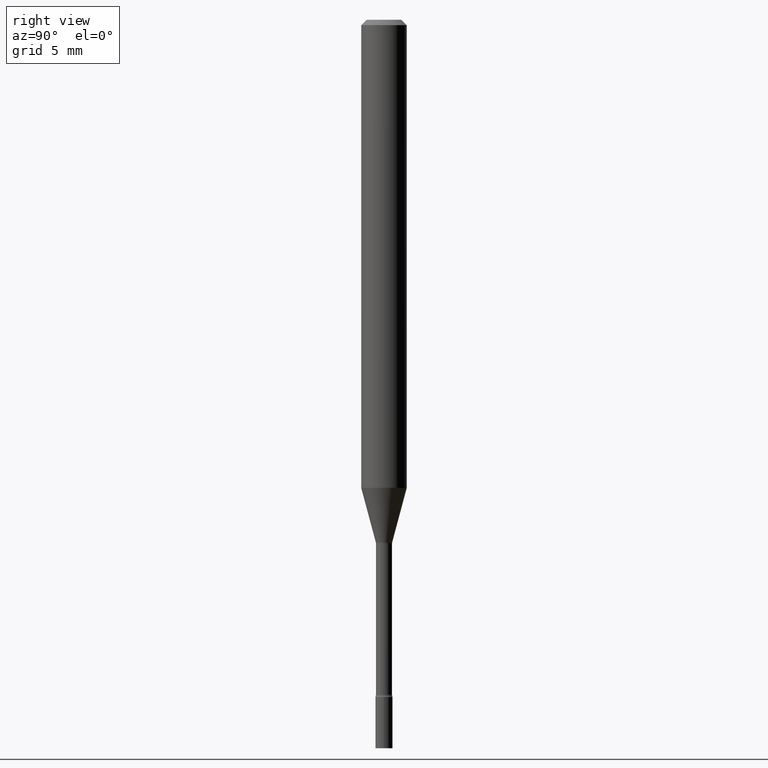
[diagram: clean part render]
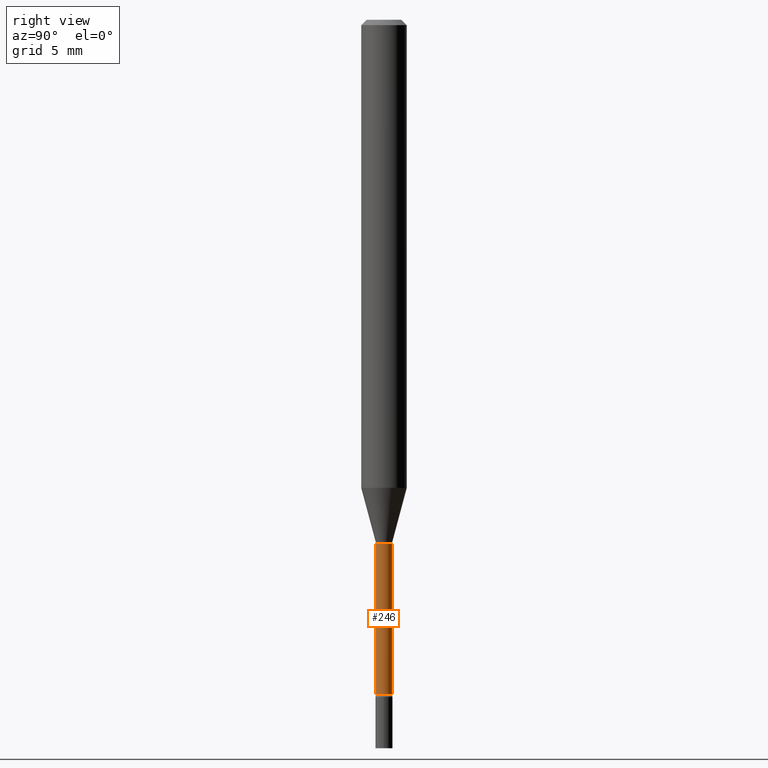
[diagram: same view with one face highlighted and labeled with its STEP entity id]
A machine part, right view. The second image highlights one B-rep face of the part: STEP entity #246.
In plain terms, the highlighted cylindrical surface (edge-blend (fillet) strip) has radius 0.5613 mm, axis along (-0, 0, 1).
Its self-contained STEP definition (entity closure, byte-faithful):
#14 = LINE ( 'NONE', #26, #149 ) ;
#26 = CARTESIAN_POINT ( 'NONE',  ( 1.570299446029823003E-16, 0.02210000000000002587, -7.716142788293254101E-17 ) ) ;
#54 = CARTESIAN_POINT ( 'NONE',  ( 3.516536558558135871E-29, -5.020641984631854302E-15, -1.437974787463811133 ) ) ;
#72 = VERTEX_POINT ( 'NONE', #188 ) ;
#86 = CARTESIAN_POINT ( 'NONE',  ( -1.543234751768313085E-16, -0.02210000000000501841, -1.437974787463811133 ) ) ;
#89 = CARTESIAN_POINT ( 'NONE',  ( -1.543234751768666594E-16, -0.02210000000000002587, 7.716142788293254101E-17 ) ) ;
#96 = DIRECTION ( 'NONE',  ( -6.982962677686265922E-15, -1.000000000000000000, 0.000000000000000000 ) ) ;
#123 = LINE ( 'NONE', #89, #141 ) ;
#141 = VECTOR ( 'NONE', #243, 39.37007874015748143 ) ;
#143 = VERTEX_POINT ( 'NONE', #261 ) ;
#144 = CARTESIAN_POINT ( 'NONE',  ( 4.530670406511994597E-29, -6.468544740734887756E-15, -1.852672283192177582 ) ) ;
#149 = VECTOR ( 'NONE', #376, 39.37007874015748143 ) ;
#171 = CARTESIAN_POINT ( 'NONE',  ( -1.543234751768215957E-16, -0.02210000000000652762, -1.852672283192177582 ) ) ;
#188 = CARTESIAN_POINT ( 'NONE',  ( 1.570299446030275858E-16, 0.02209999999999497783, -1.437974787463811133 ) ) ;
#194 = CIRCLE ( 'NONE', #481, 0.02209999999999999812 ) ;
#212 = ORIENTED_EDGE ( 'NONE', *, *, #502, .T. ) ;
#224 = AXIS2_PLACEMENT_3D ( 'NONE', #269, #431, #310 ) ;
#243 = DIRECTION ( 'NONE',  ( -2.445478591985837749E-29, 3.491467325019568091E-15, 1.000000000000000000 ) ) ;
#246 = ADVANCED_FACE ( 'NONE', ( #316 ), #317, .T. ) ;
#257 = AXIS2_PLACEMENT_3D ( 'NONE', #144, #458, #96 ) ;
#261 = CARTESIAN_POINT ( 'NONE',  ( 1.620037437533484049E-16, 0.02209999999999359352, -1.852672283192177582 ) ) ;
#269 = CARTESIAN_POINT ( 'NONE',  ( 0.000000000000000000, 0.000000000000000000, 0.000000000000000000 ) ) ;
#279 = VERTEX_POINT ( 'NONE', #86 ) ;
#310 = DIRECTION ( 'NONE',  ( -6.982962677686265922E-15, -1.000000000000000000, 3.491467325019568091E-15 ) ) ;
#316 = FACE_OUTER_BOUND ( 'NONE', #475, .T. ) ;
#317 = CYLINDRICAL_SURFACE ( 'NONE', #224, 0.02210000000000002587 ) ;
#319 = EDGE_CURVE ( 'NONE', #372, #279, #123, .T. ) ;
#326 = EDGE_CURVE ( 'NONE', #279, #72, #194, .T. ) ;
#342 = ORIENTED_EDGE ( 'NONE', *, *, #326, .F. ) ;
#353 = ORIENTED_EDGE ( 'NONE', *, *, #319, .F. ) ;
#372 = VERTEX_POINT ( 'NONE', #171 ) ;
#376 = DIRECTION ( 'NONE',  ( -2.445478591985837749E-29, 3.491467325019568091E-15, 1.000000000000000000 ) ) ;
#416 = ORIENTED_EDGE ( 'NONE', *, *, #490, .T. ) ;
#417 = CIRCLE ( 'NONE', #257, 0.02210000000000006057 ) ;
#431 = DIRECTION ( 'NONE',  ( -2.445478591985838029E-29, 3.491467325019567696E-15, 1.000000000000000000 ) ) ;
#458 = DIRECTION ( 'NONE',  ( -2.445478591985838029E-29, 3.491467325019567696E-15, 1.000000000000000000 ) ) ;
#475 = EDGE_LOOP ( 'NONE', ( #416, #212, #342, #353 ) ) ;
#481 = AXIS2_PLACEMENT_3D ( 'NONE', #54, #492, #486 ) ;
#486 = DIRECTION ( 'NONE',  ( -6.982962677686265922E-15, -1.000000000000000000, 0.000000000000000000 ) ) ;
#490 = EDGE_CURVE ( 'NONE', #372, #143, #417, .T. ) ;
#492 = DIRECTION ( 'NONE',  ( -2.445478591985838029E-29, 3.491467325019567696E-15, 1.000000000000000000 ) ) ;
#502 = EDGE_CURVE ( 'NONE', #143, #72, #14, .T. ) ;